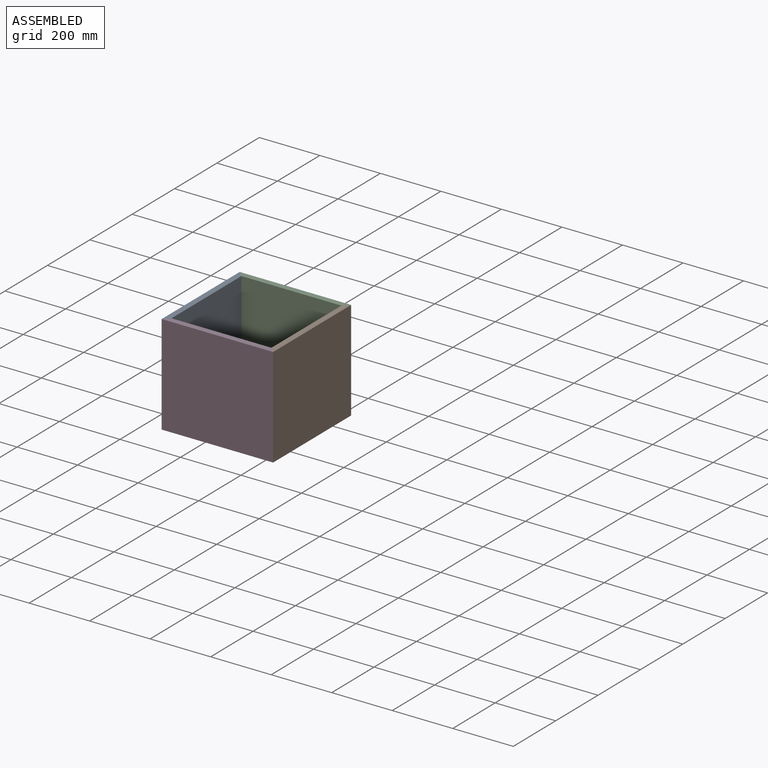
[diagram: assembled view]
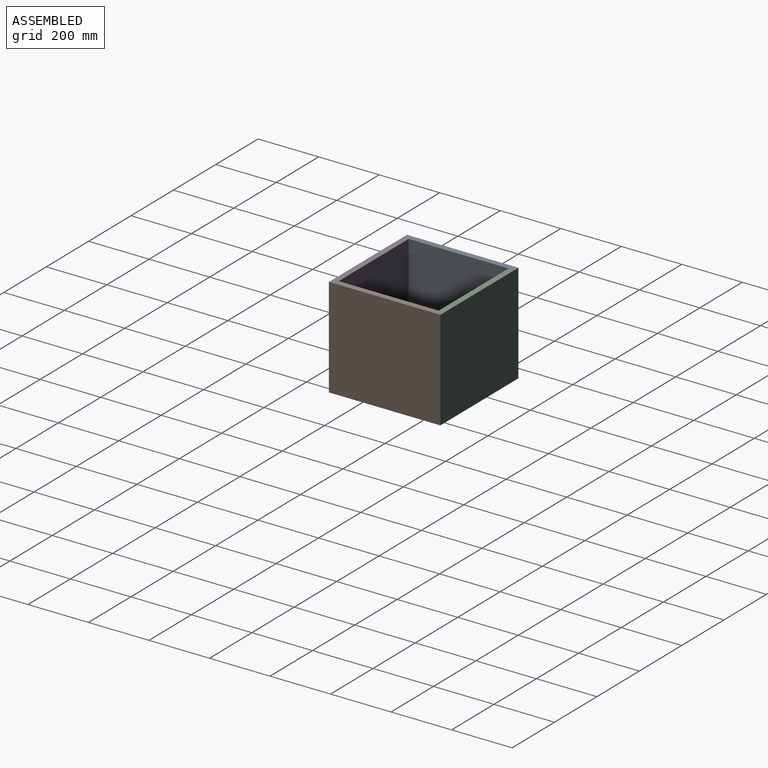
[diagram: assembled view, second angle]
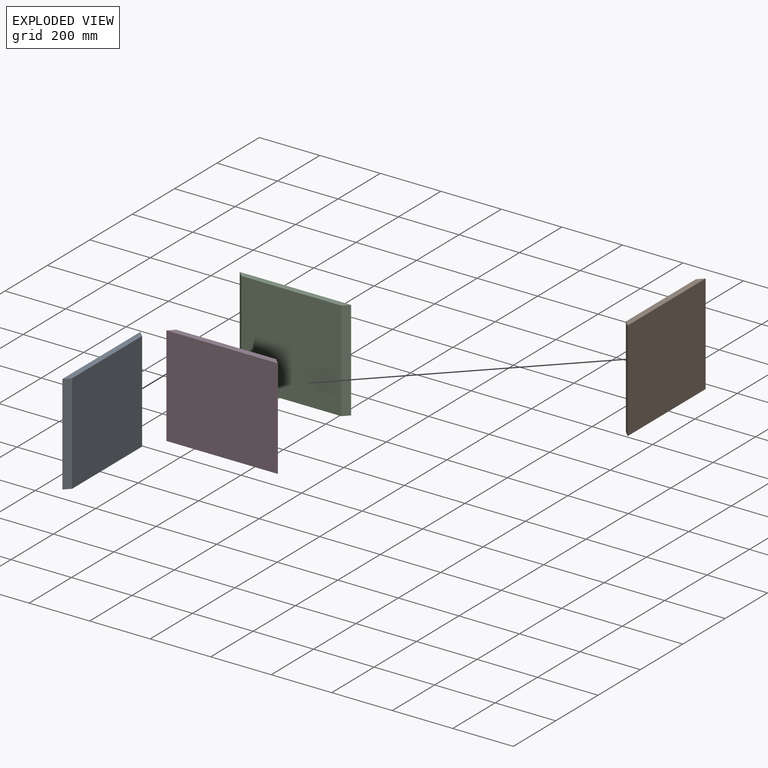
[diagram: exploded view]
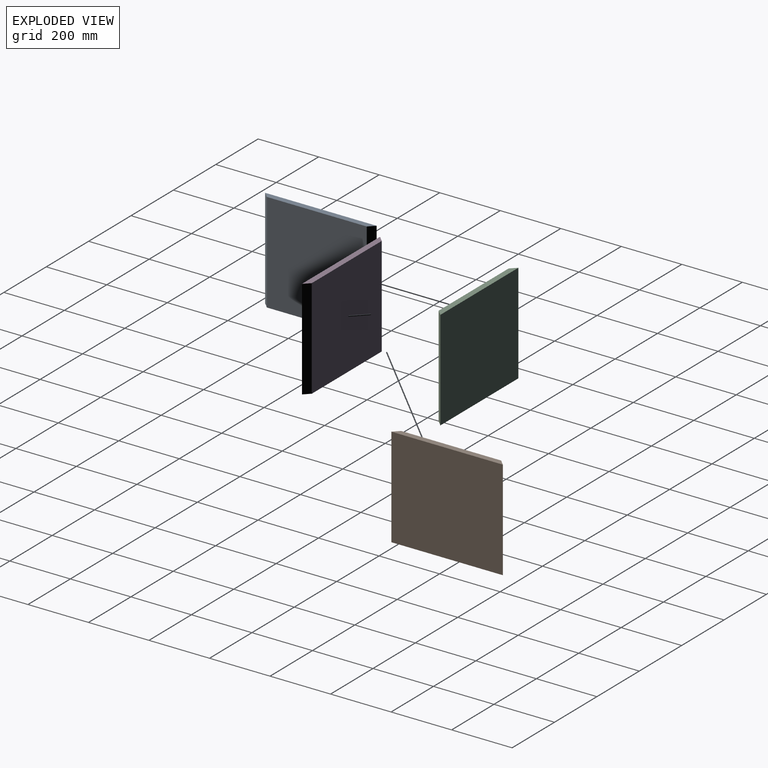
[diagram: exploded view, second angle]
ASSEMBLY  parts=4 mates=3
PART A: 6 faces, bbox 368.3x19.1x330.2 mm
  f0: plane 330.2x330.2mm, normal (0,-1,0), area 109032mm2, adj f1,f3,f4,f5
  f1: plane 330.2x19.05mm, normal (0.71,-0.71,0), area 8895.8mm2, adj f0,f2,f4,f5
  f2: plane 368.3x330.2mm, normal (0,1,0), area 121612.7mm2, adj f1,f3,f4,f5
  f3: plane 330.2x19.05mm, normal (-0.71,-0.71,0), area 8895.8mm2, adj f0,f2,f4,f5
  f4: plane 368.3x19.05mm, normal (0,0,1), area 6653.2mm2, adj f0,f1,f2,f3
  f5: plane 368.3x19.05mm, normal (0,0,-1), area 6653.2mm2, adj f0,f1,f2,f3
PART B: same geometry as A
PART C: same geometry as A
PART D: same geometry as A
PLACE A rot(axis=(0.71,-0.71,0),180deg) t=(-322.45,283.91,340.47)mm
PLACE B rot(axis=(-0.71,-0.71,0),180deg) t=(26.8,283.91,340.47)mm
PLACE C t=(-147.82,458.54,10.27)mm
PLACE D rot(axis=(0,0,-1),180deg) t=(-147.82,109.29,10.27)mm
MATE fastened D.f3 <-> B.f3  axis (0.71,0.71,0) through (26.8,109.29,175.37)mm
MATE fastened D.f1 <-> A.f1  axis (-0.71,0.71,0) through (-322.45,109.29,175.37)mm
MATE fastened A.f3 <-> C.f3  axis (0.71,0.71,0) through (-322.45,458.54,175.37)mm
